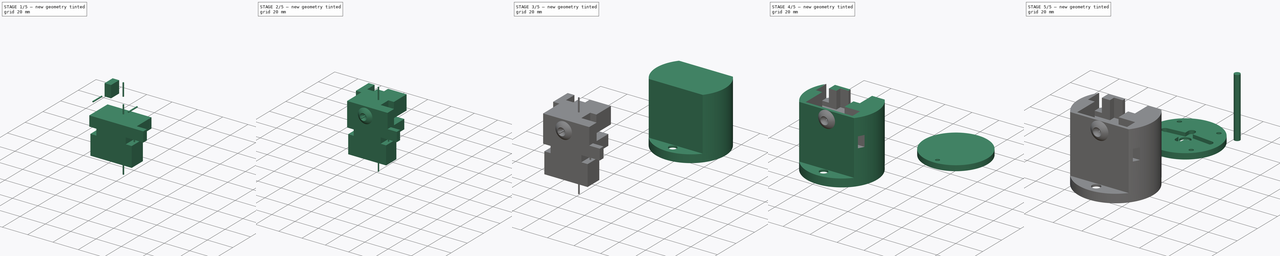
[diagram: build sequence overview — one tinted view per stage of 5, left to right]
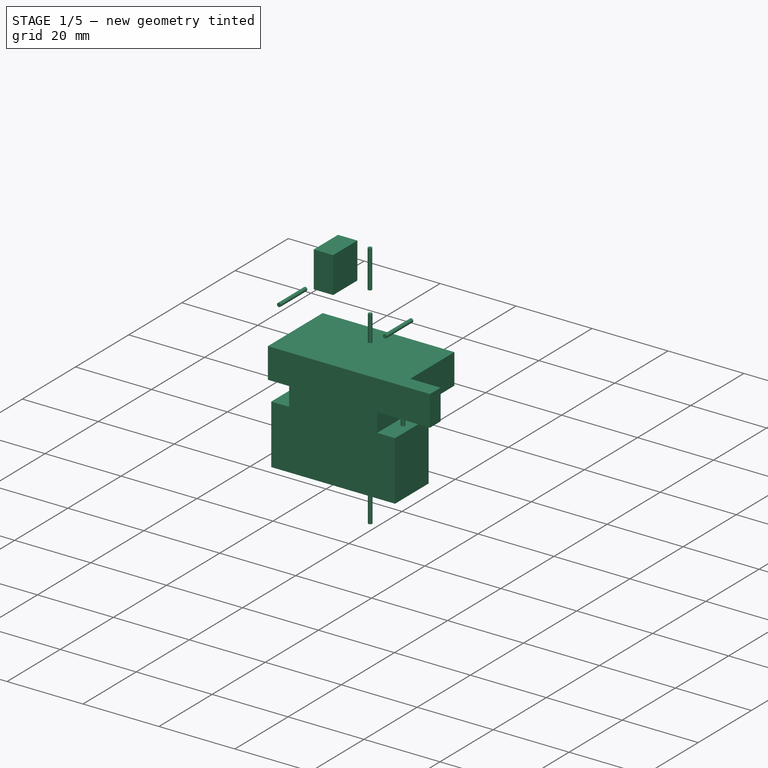
[diagram: stage 1 of 5 — iso view after this stage's code; geometry added in this stage tinted green]
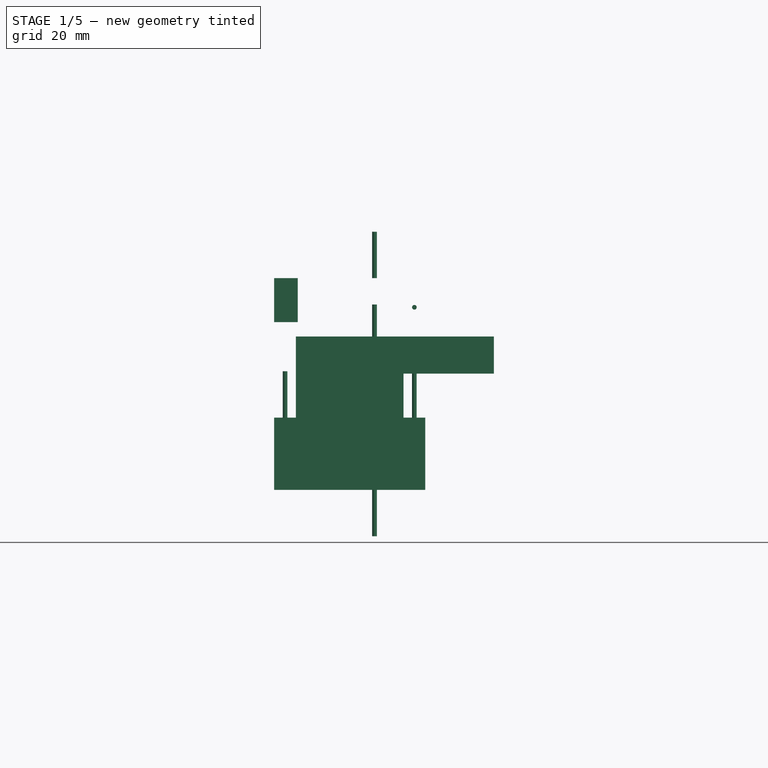
[diagram: stage 1 of 5 — front view after this stage's code; geometry added in this stage tinted green]
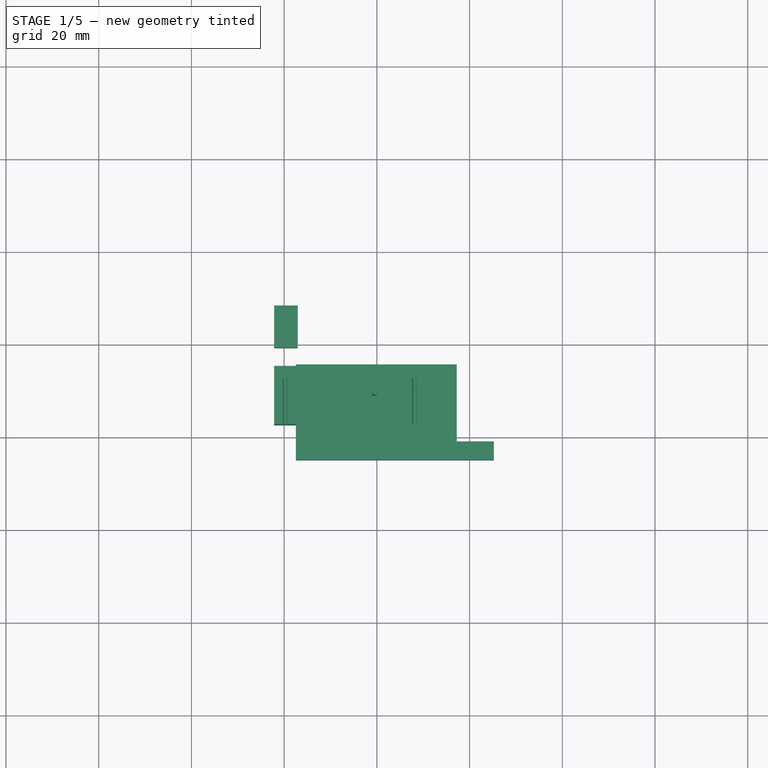
[diagram: stage 1 of 5 — top view after this stage's code; geometry added in this stage tinted green]
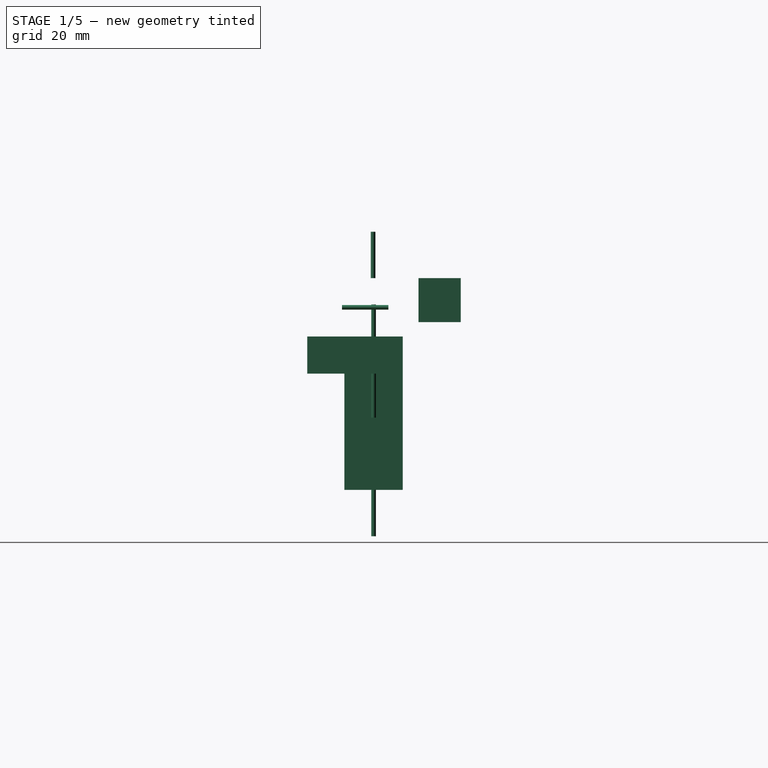
[diagram: stage 1 of 5 — right view after this stage's code; geometry added in this stage tinted green]
FCSTD DOCUMENT  (FreeCAD 0.18.3R)
Label: Horizonal.Turning.Frame.and.Disk
License: All rights reserved
LicenseURL: http://en.wikipedia.org/wiki/All_rights_reserved
objects: Part::Part2DObjectPython×44, Part::Extrusion×42, Part::Cut×16, Part::MultiFuse×12, Sketcher::SketchObject×4, App::DocumentObjectGroup×2, Part::Sphere×2, Part::FeaturePython×2, App::Part×1
note: 122 computed .brp shape members not serialized (recipe doc carries the construction recipe); baked Part::Feature solids carry a one-line shape summary decoded from their .brp

FEATURE [Part::Extrusion] Extrude005  label="Extrude - Vertical Axis"
  Base = -> Circle017
  Dir = (0,1,-2e-16)
  DirMode = 2
  FaceMakerClass = Part::FaceMakerBullseye
  LengthFwd = 50
  LengthRev = 0
  Placement = pos=(1.42e-14,-50,1.07e-14) rot=(0,0,1;0rad)
  Solid = false
  Symmetric = false
FEATURE [Part::Part2DObjectPython] Rectangle011  # Draft 2D object (typed FeaturePython)
  ChamferSize = 0
  Columns = 1
  FilletRadius = 0
  Height = 15.6
  Length = 32.6
  MakeFace = true
  Placement = pos=(-122.162,33.1,1.2e-15) rot=(1,0,0;3.14159rad)
  Rows = 1
FEATURE [Part::Part2DObjectPython] Rectangle012  # Draft 2D object (typed FeaturePython)
  ChamferSize = 0
  Columns = 1
  FilletRadius = 0
  Height = 9.5
  Length = 23.2
  MakeFace = true
  Placement = pos=(-117.462,17.5,3e-15) rot=(1,0,0;3.14159rad)
  Rows = 1
FEATURE [Part::Part2DObjectPython] Rectangle013  # Draft 2D object (typed FeaturePython)
  ChamferSize = 0
  Columns = 1
  FilletRadius = 0
  Height = 8
  Length = 34.7
  MakeFace = true
  Placement = pos=(-117.462,8,2.2e-15) rot=(1,0,0;3.14159rad)
  Rows = 1
FEATURE [Part::Extrusion] Extrude031
  Base = -> Rectangle011
  Dir = (-1e-16,1e-16,-1)
  DirMode = 2
  FaceMakerClass = Part::FaceMakerBullseye
  LengthFwd = 12.6
  LengthRev = 0
  Solid = false
  Symmetric = false
FEATURE [Part::Extrusion] Extrude032
  Base = -> Rectangle012
  Dir = (-1e-16,1e-16,-1)
  DirMode = 2
  FaceMakerClass = Part::FaceMakerBullseye
  LengthFwd = 12.6
  LengthRev = 0
  Solid = false
  Symmetric = false
FEATURE [Part::Extrusion] Extrude033
  Base = -> Rectangle013
  Dir = (-1e-16,1e-16,-1)
  DirMode = 2
  FaceMakerClass = Part::FaceMakerBullseye
  LengthFwd = 12.6
  LengthRev = 0
  Solid = false
  Symmetric = false
FEATURE [Part::MultiFuse] Fusion007
  Placement = pos=(-80.8474,-69.1144,2.4e-15) rot=(0,0,1;0rad)
  Shapes = -> [Extrude031,Extrude032,Extrude033]
FEATURE [Part::Part2DObjectPython] Rectangle015  # Draft 2D object (typed FeaturePython)
  ChamferSize = 0
  Columns = 1
  FilletRadius = 0
  Height = 9.5
  Length = 9.1
  MakeFace = true
  Placement = pos=(-122.162,-41.5303,-3.6e-15) rot=(0.57735,0.57735,-0.57735;4.18879rad)
  Rows = 1
FEATURE [Part::Extrusion] Extrude034
  Base = -> Rectangle015
  Dir = (-1,1e-16,-1e-16)
  DirMode = 2
  FaceMakerClass = Part::FaceMakerBullseye
  LengthFwd = -5.1
  LengthRev = 0
  Solid = false
  Symmetric = false
FEATURE [Part::Part2DObjectPython] Circle034  # Draft 2D object (typed FeaturePython)
  FirstAngle = 0
  LastAngle = 0
  MakeFace = true
  Placement = pos=(-91.9123,-48.0303,-6.3) rot=(0,0.707107,-0.707107;3.14159rad)
  Radius = 0.5
FEATURE [Part::Part2DObjectPython] Circle035  # Draft 2D object (typed FeaturePython)
  FirstAngle = 0
  LastAngle = 0
  MakeFace = true
  Placement = pos=(-119.812,-48.0303,-6.3) rot=(0,0.707107,-0.707107;3.14159rad)
  Radius = 0.5
FEATURE [Part::Extrusion] Extrude035
  Base = -> Circle035
  Dir = (-1e-16,-1,-2e-16)
  DirMode = 2
  FaceMakerClass = Part::FaceMakerBullseye
  LengthFwd = 10
  LengthRev = 0
  Solid = false
  Symmetric = false
FEATURE [Part::Extrusion] Extrude036
  Base = -> Circle034
  Dir = (-1e-16,-1,-2e-16)
  DirMode = 2
  FaceMakerClass = Part::FaceMakerBullseye
  LengthFwd = 10
  LengthRev = 0
  Solid = false
  Symmetric = false
FEATURE [Part::Part2DObjectPython] Circle036  # Draft 2D object (typed FeaturePython)
  FirstAngle = 0
  LastAngle = 0
  MakeFace = true
  Placement = pos=(-200.66,-51.6144,-6.3) rot=(0,0.707107,-0.707107;3.14159rad)
  Radius = 0.5
FEATURE [Part::Part2DObjectPython] Circle037  # Draft 2D object (typed FeaturePython)
  FirstAngle = 0
  LastAngle = 0
  MakeFace = true
  Placement = pos=(-172.76,-51.6144,-6.3) rot=(0,0.707107,-0.707107;3.14159rad)
  Radius = 0.5
FEATURE [Part::Extrusion] Extrude037
  Base = -> Circle036
  Dir = (3e-16,-1,-2e-16)
  DirMode = 2
  FaceMakerClass = Part::FaceMakerBullseye
  LengthFwd = 10
  LengthRev = 0
  Solid = false
  Symmetric = false
FEATURE [Part::Extrusion] Extrude038
  Base = -> Circle037
  Dir = (-1e-16,-1,-2e-16)
  DirMode = 2
  FaceMakerClass = Part::FaceMakerBullseye
  LengthFwd = 10
  LengthRev = 0
  Solid = false
  Symmetric = false
FEATURE [Part::MultiFuse] Fusion
  Shapes = -> [Fusion007,Extrude038,Extrude037]
FEATURE [Part::Part2DObjectPython] Circle038  # Draft 2D object (typed FeaturePython)
  FirstAngle = 0
  LastAngle = 0
  MakeFace = true
  Placement = pos=(-100.512,-51.3303,-5.5e-15) rot=(0,0,1;0rad)
  Radius = 0.5
FEATURE [Part::Part2DObjectPython] Rectangle  # Draft 2D object (typed FeaturePython)
  ChamferSize = 0
  Columns = 1
  FilletRadius = 0
  Height = 8
  Length = 8
  MakeFace = true
  Placement = pos=(-117.462,-65.5303,-20.6) rot=(0.57735,0.57735,0.57735;2.0944rad)
  Rows = 1
FEATURE [Part::Extrusion] Extrude039
  Base = -> Rectangle
  Dir = (1,-1e-16,-1e-16)
  DirMode = 2
  FaceMakerClass = Part::FaceMakerBullseye
  LengthFwd = 34.7
  LengthRev = 0
  Solid = false
  Symmetric = false
FEATURE [Part::Part2DObjectPython] Circle039  # Draft 2D object (typed FeaturePython)
  FirstAngle = 0
  LastAngle = 0
  MakeFace = true
  Placement = pos=(69.9424,0.00389671,11.2) rot=(1,0,0;3.14159rad)
  Radius = 2
FEATURE [Part::Extrusion] Extrude040  label="Extrude - Vertical azis connection on vertical Servo"
  Base = -> Circle038
  Dir = (1e-16,-1e-16,1)
  DirMode = 2
  FaceMakerClass = Part::FaceMakerBullseye
  LengthFwd = 10
  LengthRev = 0
  Solid = false
  Symmetric = false
FEATURE [Part::Part2DObjectPython] Rectangle017  # Draft 2D object (typed FeaturePython)
  ChamferSize = 0
  Columns = 1
  FilletRadius = 0
  Height = 8
  Length = 4
  MakeFace = true
  Placement = pos=(-10.885,-75.3786,32.1) rot=(0.57735,0.57735,0.57735;2.0944rad)
  Rows = 1
FEATURE [Part::Extrusion] Extrude053
  Base = -> Rectangle017
  Dir = (1,0,0)
  DirMode = 2
  FaceMakerClass = Part::FaceMakerBullseye
  LengthFwd = 8
  LengthRev = 0
  Placement = pos=(-71.8773,9.84826,-52.7) rot=(0,0,1;0rad)
  Solid = false
  Symmetric = false
FEATURE [Part::MultiFuse] Fusion018
  Placement = pos=(80.8474,-44.9303,-81.7144) rot=(-1,0,0;1.5708rad)
  Shapes = -> [Fusion,Extrude005]
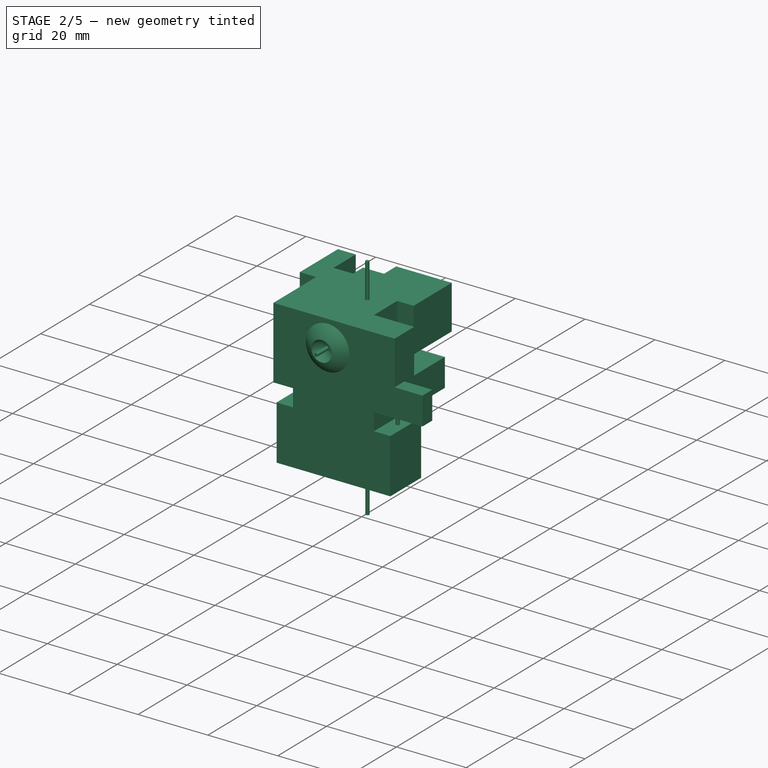
[diagram: stage 2 of 5 — iso view after this stage's code; geometry added in this stage tinted green]
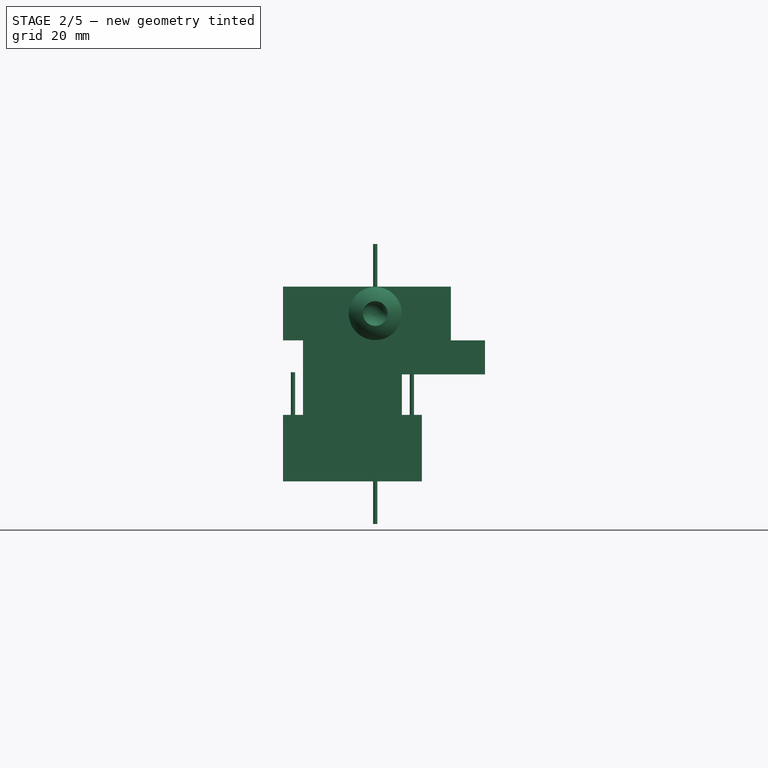
[diagram: stage 2 of 5 — front view after this stage's code; geometry added in this stage tinted green]
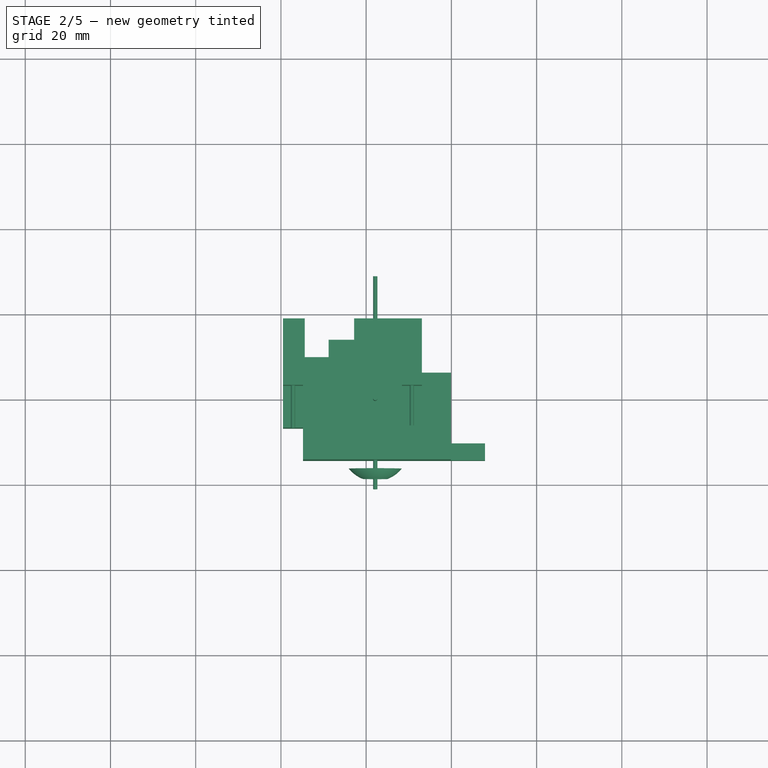
[diagram: stage 2 of 5 — top view after this stage's code; geometry added in this stage tinted green]
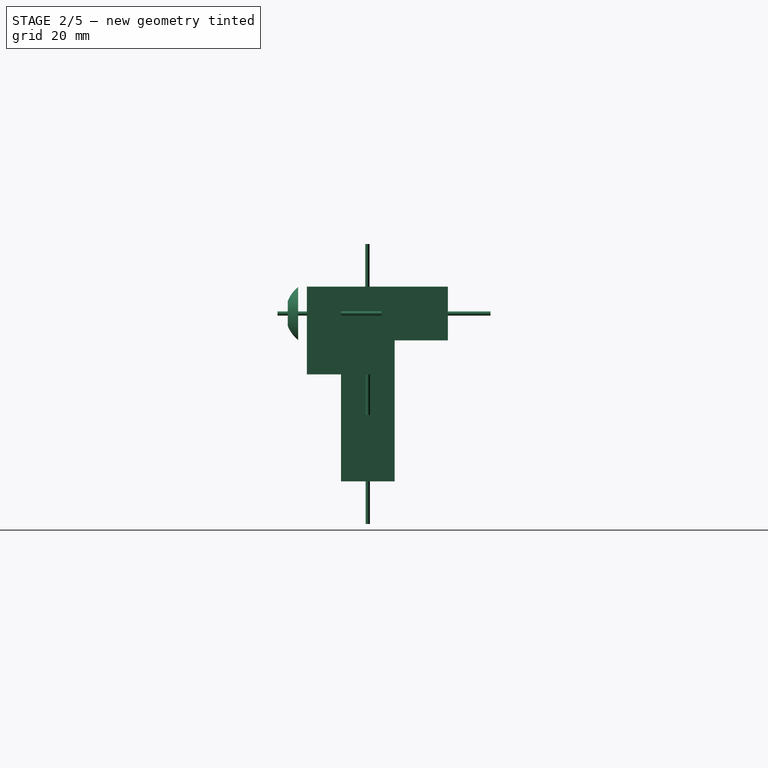
[diagram: stage 2 of 5 — right view after this stage's code; geometry added in this stage tinted green]
FEATURE [Part::Part2DObjectPython] Rectangle005  # Draft 2D object (typed FeaturePython)
  ChamferSize = 0
  Columns = 1
  FilletRadius = 0
  Height = 8
  Length = 34.7
  MakeFace = true
  Placement = pos=(-117.462,8,6e-16) rot=(1,0,0;3.14159rad)
  Rows = 1
FEATURE [Part::Part2DObjectPython] Rectangle007  # Draft 2D object (typed FeaturePython)
  ChamferSize = 0
  Columns = 1
  FilletRadius = 0
  Height = 9.5
  Length = 23.2
  MakeFace = true
  Placement = pos=(-117.462,17.5,2.2e-15) rot=(1,0,0;3.14159rad)
  Rows = 1
FEATURE [Part::Part2DObjectPython] Rectangle008  # Draft 2D object (typed FeaturePython)
  ChamferSize = 0
  Columns = 1
  FilletRadius = 0
  Height = 6.5
  Length = 32.6
  MakeFace = true
  Placement = pos=(-122.162,24,5e-16) rot=(1,0,0;3.14159rad)
  Rows = 1
FEATURE [Part::Part2DObjectPython] Rectangle009  # Draft 2D object (typed FeaturePython)
  ChamferSize = 0
  Columns = 1
  FilletRadius = 0
  Height = 4.1
  Length = 21.9
  MakeFace = true
  Placement = pos=(-111.462,28.1,0) rot=(1,0,0;3.14159rad)
  Rows = 1
FEATURE [Part::Part2DObjectPython] Rectangle010  # Draft 2D object (typed FeaturePython)
  ChamferSize = 0
  Columns = 1
  FilletRadius = 0
  Height = 5
  Length = 15.9
  MakeFace = true
  Placement = pos=(-105.462,33.1,0) rot=(1,0,0;3.14159rad)
  Rows = 1
FEATURE [Part::Extrusion] Extrude025
  Base = -> Rectangle005
  Dir = (-1e-16,1e-16,-1)
  DirMode = 2
  FaceMakerClass = Part::FaceMakerBullseye
  LengthFwd = 12.6
  LengthRev = 0
  Placement = pos=(0,-65.5303,-5.1e-15) rot=(0,0,1;0rad)
  Solid = false
  Symmetric = false
FEATURE [Part::Extrusion] Extrude027
  Base = -> Rectangle007
  Dir = (-1e-16,1e-16,-1)
  DirMode = 2
  FaceMakerClass = Part::FaceMakerBullseye
  LengthFwd = 12.6
  LengthRev = 0
  Placement = pos=(0,-65.5303,-5.1e-15) rot=(0,0,1;0rad)
  Solid = false
  Symmetric = false
FEATURE [Part::Extrusion] Extrude028
  Base = -> Rectangle008
  Dir = (-1e-16,1e-16,-1)
  DirMode = 2
  FaceMakerClass = Part::FaceMakerBullseye
  LengthFwd = 12.6
  LengthRev = 0
  Placement = pos=(0,-65.5303,-5.1e-15) rot=(0,0,1;0rad)
  Solid = false
  Symmetric = false
FEATURE [Part::Extrusion] Extrude029
  Base = -> Rectangle009
  Dir = (-1e-16,1e-16,-1)
  DirMode = 2
  FaceMakerClass = Part::FaceMakerBullseye
  LengthFwd = 12.6
  LengthRev = 0
  Placement = pos=(0,-65.5303,-5.1e-15) rot=(0,0,1;0rad)
  Solid = false
  Symmetric = false
FEATURE [Part::Extrusion] Extrude030
  Base = -> Rectangle010
  Dir = (-1e-16,1e-16,-1)
  DirMode = 2
  FaceMakerClass = Part::FaceMakerBullseye
  LengthFwd = 12.6
  LengthRev = 0
  Placement = pos=(0,-65.5303,-5.1e-15) rot=(0,0,1;0rad)
  Solid = false
  Symmetric = false
FEATURE [Part::MultiFuse] Fusion008
  Shapes = -> [Extrude030,Extrude029,Extrude028,Extrude027,Extrude025,Extrude034,Extrude035,Extrude036]
FEATURE [Part::Part2DObjectPython] Circle  # Draft 2D object (typed FeaturePython)
  FirstAngle = 0
  LastAngle = 0
  MakeFace = true
  Placement = pos=(-100.512,-22.4303,-6.3) rot=(-1,0,0;1.5708rad)
  Radius = 0.5
FEATURE [Part::Extrusion] Extrude  label="Extrude -Horizontal Axis"
  Base = -> Circle
  Dir = (0,1,-2e-16)
  DirMode = 2
  FaceMakerClass = Part::FaceMakerBullseye
  LengthFwd = -50
  LengthRev = 0
  Solid = false
  Symmetric = false
FEATURE [Part::MultiFuse] Fusion010
  Shapes = -> [Fusion008,Extrude039]
FEATURE [Part::Part2DObjectPython] Rectangle018  # Draft 2D object (typed FeaturePython)
  ChamferSize = 0
  Columns = 1
  FilletRadius = 0
  Height = 38.5299
  Length = 41.3827
  MakeFace = true
  Placement = pos=(18.1225,-129.871,2.27166) rot=(-1,0,0;1.5708rad)
  Rows = 1
FEATURE [Part::Sphere] Sphere
  Angle1 = -90
  Angle2 = 90
  Angle3 = 360
  AttacherType = Attacher::AttachEngine3D
  Placement = pos=(38.8138,-124.85,-16.9933) rot=(0,0,1;0rad)
  Radius = 8
FEATURE [Part::FeaturePython] Slice  # WARN: FeaturePython — macro-defined, semantics opaque (R4)
  Base = -> Sphere
  Mode = 1
  Tolerance = 0
  Tools = -> [Rectangle018]
FEATURE [Part::FeaturePython] Slice_child1  label="Slice.1"  # WARN: FeaturePython — macro-defined, semantics opaque (R4)
  Base = -> Slice
  FilterType = 1
  Invert = false
  OverrideMaxVal = 0
  Placement = pos=(46.2737,49.6784,69.6933) rot=(0,0,1;0rad)
  WindowFrom = 80
  WindowTo = 100
  items = 1
FEATURE [Part::Sphere] Sphere001
  Angle1 = -90
  Angle2 = 90
  Angle3 = 360
  AttacherType = Attacher::AttachEngine3D
  Placement = pos=(85.0876,-83.3925,52.7) rot=(0,0,1;0rad)
  Radius = 3
FEATURE [Part::Cut] Cut016
  Base = -> Slice_child1
  Placement = pos=(-42.9517,-16.7774,-6.30576) rot=(0,0,1;0rad)
  Tool = -> Sphere001
FEATURE [Part::Part2DObjectPython] Line001  # Draft 2D object (typed FeaturePython)
  ChamferSize = 0
  Closed = false
  End = (-163.61,-77.1144,0)
  FilletRadius = 0
  Length = 8
  MakeFace = true
  Placement = pos=(-163.61,-69.1144,6e-16) rot=(0.57735,-0.57735,0.57735;4.18879rad)
  Points = (2) [(0,0,0),(8,1.82711e-16,0)]
  Start = (-163.61,-69.1144,6e-16)
  Subdivisions = 0
  Support = -> [Fusion]
FEATURE [Part::MultiFuse] Fusion019
  Shapes = -> [Extrude040,Extrude,Fusion010,Extrude053]
FEATURE [Part::MultiFuse] Fusion020
  Placement = pos=(142.651,-29.3896,52.7) rot=(0,0,1;0rad)
  Shapes = -> [Fusion019,Fusion018]
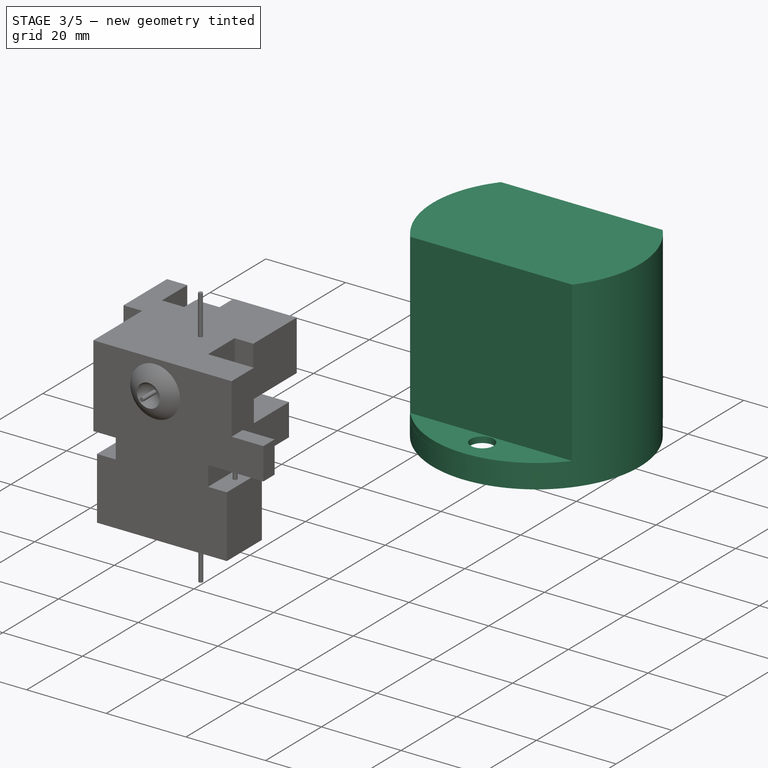
[diagram: stage 3 of 5 — iso view after this stage's code; geometry added in this stage tinted green]
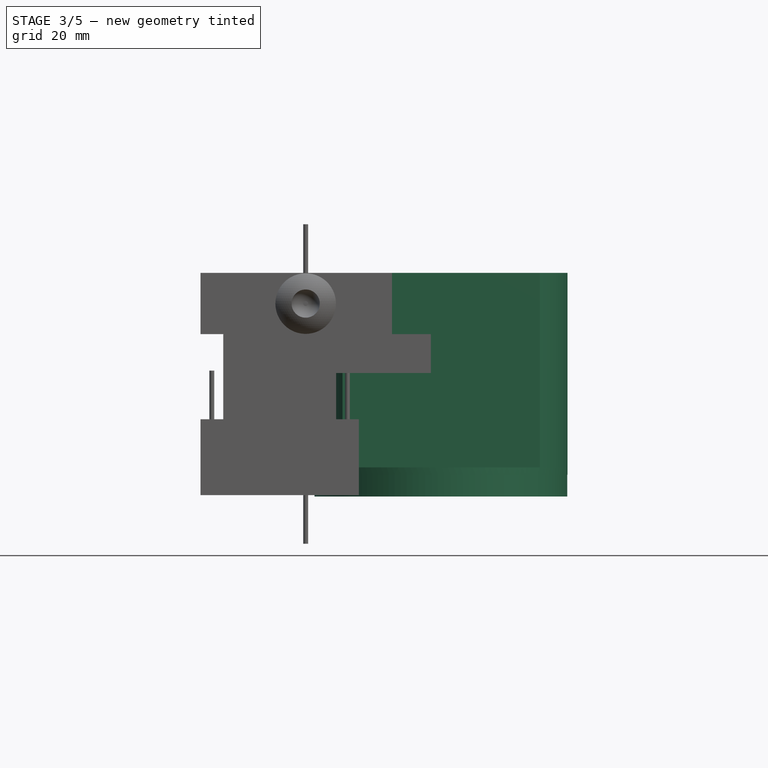
[diagram: stage 3 of 5 — front view after this stage's code; geometry added in this stage tinted green]
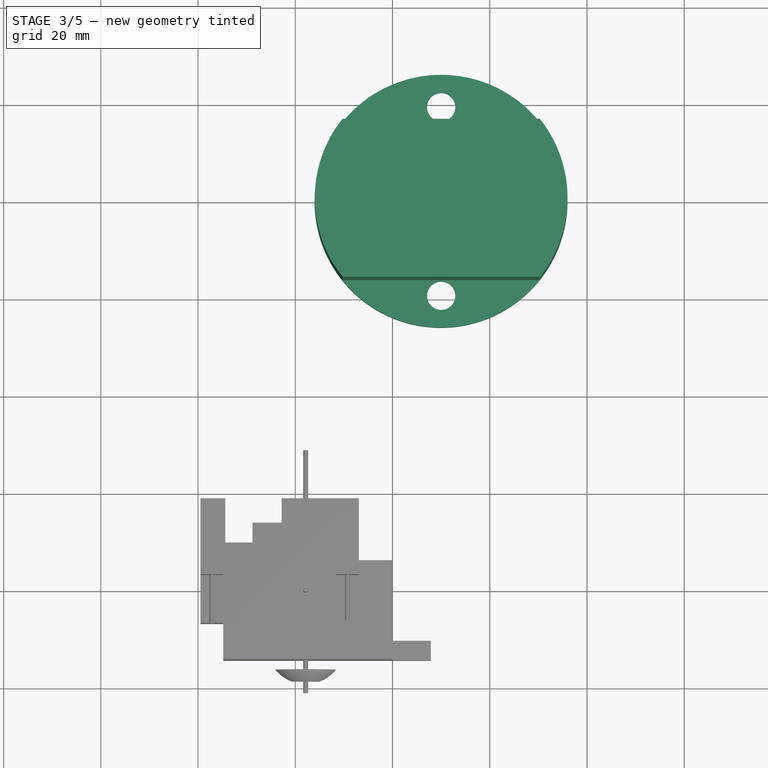
[diagram: stage 3 of 5 — top view after this stage's code; geometry added in this stage tinted green]
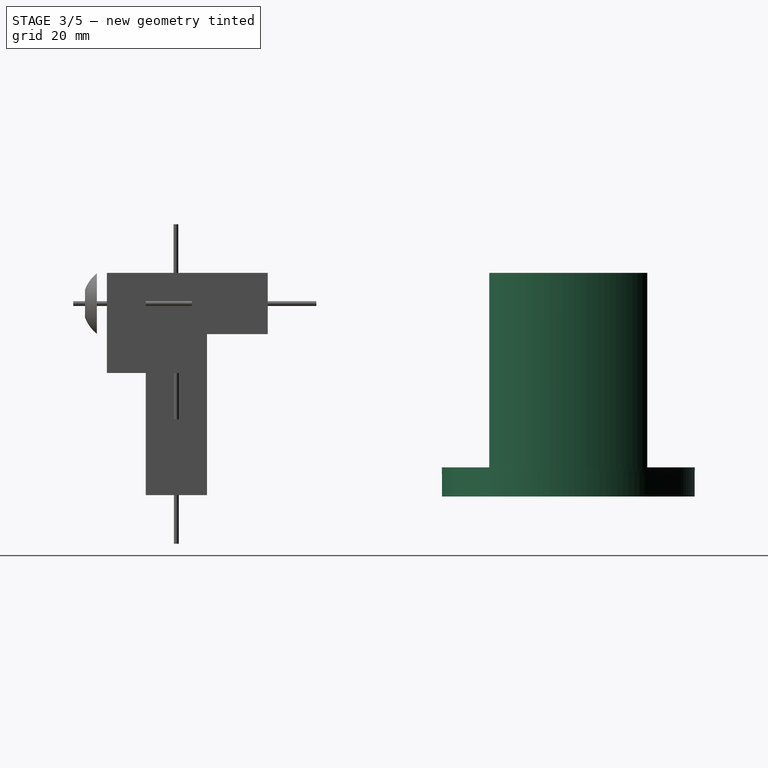
[diagram: stage 3 of 5 — right view after this stage's code; geometry added in this stage tinted green]
FEATURE [App::Part] Part  label="Part - Vertical Servo XY"
  Origin = -> Origin
FEATURE [Sketcher::SketchObject] Sketch001  label="Vertical Servo - Sketch - XY"
  MapMode = 5
  sketch-geometry (17):
    g0: LineSegment StartX=-122.162 StartY=33.1 StartZ=0 EndX=-122.162 EndY=17.5 EndZ=0
    g1: LineSegment StartX=-122.162 StartY=17.5 StartZ=0 EndX=-117.462 EndY=17.5 EndZ=0
    g2: LineSegment StartX=-117.462 StartY=17.5 StartZ=0 EndX=-117.462 EndY=0 EndZ=0
    g3: LineSegment StartX=-117.462 StartY=0 StartZ=0 EndX=-82.7623 EndY=0 EndZ=0
    g4: LineSegment StartX=-82.7623 StartY=0 StartZ=0 EndX=-82.7623 EndY=8 EndZ=0
    g5: LineSegment StartX=-82.7623 StartY=8 StartZ=0 EndX=-94.2623 EndY=8 EndZ=0
    g6: LineSegment StartX=-94.2623 StartY=8 StartZ=0 EndX=-94.2623 EndY=17.5 EndZ=0
    g7: LineSegment StartX=-94.2623 StartY=17.5 StartZ=0 EndX=-89.5623 EndY=17.5 EndZ=0
    g8: LineSegment StartX=-89.5623 StartY=17.5 StartZ=0 EndX=-89.5623 EndY=33.1 EndZ=0
    g9: LineSegment StartX=-89.5623 StartY=33.1 StartZ=0 EndX=-105.462 EndY=33.1 EndZ=0
    g10: LineSegment StartX=-105.462 StartY=33.1 StartZ=0 EndX=-105.462 EndY=28.1 EndZ=0
    g11: LineSegment StartX=-105.462 StartY=28.1 StartZ=0 EndX=-111.462 EndY=28.1 EndZ=0
    g12: LineSegment StartX=-111.462 StartY=28.1 StartZ=0 EndX=-111.462 EndY=24 EndZ=0
    g13: LineSegment StartX=-111.462 StartY=24 StartZ=0 EndX=-117.462 EndY=24 EndZ=0
    g14: LineSegment StartX=-117.462 StartY=24 StartZ=0 EndX=-117.462 EndY=33.1 EndZ=0
    g15: LineSegment StartX=-117.462 StartY=33.1 StartZ=0 EndX=-122.162 EndY=33.1 EndZ=0
    g16: LineSegment [constr] StartX=-105.862 StartY=39.7298 StartZ=0 EndX=-105.862 EndY=-32.8454 EndZ=0
  constraints (47):
    c: Vertical(g0)
    c: Coincident(g0,g1)
    c: Horizontal(g1)
    c: Coincident(g1,g2)
    c: Vertical(g2)
    c: Coincident(g2,g3)
    c: Horizontal(g3)
    c: Coincident(g3,g4)
    c: Vertical(g4)
    c: Coincident(g4,g5)
    c: Horizontal(g5)
    c: Coincident(g5,g6)
    c: Vertical(g6)
    c: Coincident(g6,g7)
    c: Horizontal(g7)
    c: Coincident(g7,g8)
    c: Vertical(g8)
    c: Coincident(g8,g9)
    c: Horizontal(g9)
    c: Vertical(g10)
    c: Coincident(g10,g11)
    c: Horizontal(g11)
    c: Coincident(g11,g12)
    c: Vertical(g12)
    c: Coincident(g12,g13)
    c: Horizontal(g13)
    c: Coincident(g13,g14)
    c: Vertical(g14)
    c: Coincident(g14,g15)
    c: Horizontal(g15)
    c: Coincident(g15,g0)
    c: DistanceX(g13,g13) = 6
    c: DistanceY(g2,g1) = 17.5
    c: DistanceY(g4,g4) = 8
    c: DistanceY(g10,g10) = 5
    c: Coincident(g9,g10)
    c: DistanceX(g1,g5) = 23.2
    c: DistanceX(g0,g7) = 32.6
    c: DistanceY(g2,g13) = 24
    c: Symmetric(g1,g6,g16)
    c: Symmetric(g0,g7,g16)
    c: DistanceY(g-1,g2) = 0
    c: DistanceX(g14,g9) = 12
    c: DistanceX(g0,g14) = 4.7
    c: DistanceY(g2,g10) = 28.1
    c: DistanceY(g13,g14) = 9.1
    c: DistanceX(g5,g5) = 11.5
FEATURE [App::DocumentObjectGroup] Group  label="Servo template"
  Group = -> [Part,Sketch001]
FEATURE [Part::Part2DObjectPython] Circle017  # Draft 2D object (typed FeaturePython)
  FirstAngle = 0
  LastAngle = 0
  MakeFace = true
  Placement = pos=(-181.36,-26.0144,-6.3) rot=(0,0.707107,0.707107;3.14159rad)
  Radius = 0.5
FEATURE [Sketcher::SketchObject] Sketch
  MapMode = 5
  Placement = pos=(70,1.8e-15,12.7) rot=(0,0,1;0rad)
  sketch-geometry (1):
    g0: Circle CenterX=0 CenterY=0 CenterZ=0 NormalX=0 NormalY=0 NormalZ=1 AngleXU=0 Radius=24
  constraints (2):
    c: Coincident(g0,g-1)
    c: Diameter(g0) = 48
FEATURE [Sketcher::SketchObject] Sketch002
  MapMode = 5
  Placement = pos=(0,0,12.7) rot=(1,0,0;3.14159rad)
FEATURE [Sketcher::SketchObject] Sketch003
  MapMode = 5
  Placement = pos=(0,0,12.7) rot=(1,0,0;3.14159rad)
  sketch-geometry (8):
    g0: LineSegment StartX=31.7289 StartY=34.4201 StartZ=0 EndX=112.659 EndY=34.4201 EndZ=0
    g1: LineSegment StartX=112.659 StartY=34.4201 StartZ=0 EndX=112.659 EndY=16.25 EndZ=0
    g2: LineSegment StartX=112.659 StartY=16.25 StartZ=0 EndX=31.7289 EndY=16.25 EndZ=0
    g3: LineSegment StartX=31.7289 StartY=16.25 StartZ=0 EndX=31.7289 EndY=34.4201 EndZ=0
    g4: LineSegment StartX=31.7289 StartY=-16.25 StartZ=0 EndX=112.659 EndY=-16.25 EndZ=0
    g5: LineSegment StartX=112.659 StartY=-16.25 StartZ=0 EndX=112.659 EndY=-33.7347 EndZ=0
    g6: LineSegment StartX=112.659 StartY=-33.7347 StartZ=0 EndX=31.7289 EndY=-33.7347 EndZ=0
    g7: LineSegment StartX=31.7289 StartY=-33.7347 StartZ=0 EndX=31.7289 EndY=-16.25 EndZ=0
  constraints (18):
    c: Coincident(g0,g1)
    c: Coincident(g1,g2)
    c: Coincident(g2,g3)
    c: Coincident(g3,g0)
    c: Horizontal(g0)
    c: Horizontal(g2)
    c: Vertical(g1)
    c: Vertical(g3)
    c: Coincident(g4,g5)
    c: Coincident(g5,g6)
    c: Coincident(g6,g7)
    c: Coincident(g7,g4)
    c: Horizontal(g6)
    c: Vertical(g5)
    c: Vertical(g7)
    c: DistanceY(g4,g1) = 32.5
    c: Symmetric(g2,g4,g-1)
    c: Symmetric(g1,g4,g-1)
FEATURE [App::DocumentObjectGroup] Group001  label="Base group"
  Group = -> [Sketch,Sketch002,Sketch003]
FEATURE [Part::Part2DObjectPython] Circle025  # Draft 2D object (typed FeaturePython)
  FirstAngle = 0
  LastAngle = 0
  MakeFace = true
  Placement = pos=(70,1.8e-15,12.7) rot=(0,0,1;0rad)
  Radius = 26
FEATURE [Part::Part2DObjectPython] Rectangle002  # Draft 2D object (typed FeaturePython)
  ChamferSize = 0
  Columns = 1
  FilletRadius = 0
  Height = 18.1701
  Length = 80.9302
  MakeFace = true
  Placement = pos=(31.7289,-34.4201,12.7) rot=(0,0,1;0rad)
  Rows = 1
FEATURE [Part::Part2DObjectPython] Rectangle003  # Draft 2D object (typed FeaturePython)
  ChamferSize = 0
  Columns = 1
  FilletRadius = 0
  Height = 17.4847
  Length = 80.9302
  MakeFace = true
  Placement = pos=(31.7289,16.25,12.7) rot=(0,0,1;0rad)
  Rows = 1
FEATURE [Part::Extrusion] Extrude016  label="Extrude - Block 2 to cut cylinder"
  Base = -> Rectangle002
  Dir = (0,0,1)
  DirMode = 2
  FaceMakerClass = Part::FaceMakerBullseye
  LengthFwd = 40
  LengthRev = 0
  Solid = false
  Symmetric = false
FEATURE [Part::Extrusion] Extrude017  label="Extrude-Block 1 to cut cylinder"
  Base = -> Rectangle003
  Dir = (0,0,1)
  DirMode = 2
  FaceMakerClass = Part::FaceMakerBullseye
  LengthFwd = 40
  LengthRev = 0
  Solid = false
  Symmetric = false
FEATURE [Part::Part2DObjectPython] Circle028  # Draft 2D object (typed FeaturePython)
  FirstAngle = 0
  LastAngle = 0
  MakeFace = true
  Placement = pos=(72.194,19.3266,12.7) rot=(0,0,1;0rad)
  Radius = 2.9
FEATURE [Part::Part2DObjectPython] Circle029  # Draft 2D object (typed FeaturePython)
  FirstAngle = 0
  LastAngle = 0
  MakeFace = true
  Placement = pos=(72.194,-19.4681,12.7) rot=(0,0,1;0rad)
  Radius = 2.9
FEATURE [Part::Extrusion] Extrude019
  Base = -> Circle028
  Dir = (0,0,1)
  DirMode = 2
  FaceMakerClass = Part::FaceMakerBullseye
  LengthFwd = -1.5
  LengthRev = 0
  Placement = pos=(-2.19398,0,-1.1e-14) rot=(0,0,1;0rad)
  Solid = false
  Symmetric = false
FEATURE [Part::Extrusion] Extrude020
  Base = -> Circle029
  Dir = (0,0,1)
  DirMode = 2
  FaceMakerClass = Part::FaceMakerBullseye
  LengthFwd = -1.5
  LengthRev = 0
  Placement = pos=(-2.19398,-7e-15,-4e-15) rot=(0,0,1;0rad)
  Solid = false
  Symmetric = false
FEATURE [Part::Extrusion] Extrude021
  Base = -> Circle025
  Dir = (0,0,1)
  DirMode = 2
  FaceMakerClass = Part::FaceMakerBullseye
  LengthFwd = 40
  LengthRev = 0
  Solid = false
  Symmetric = false
FEATURE [Part::Part2DObjectPython] Circle030  # Draft 2D object (typed FeaturePython)
  FirstAngle = 0
  LastAngle = 0
  MakeFace = true
  Placement = pos=(70,2e-15,12.7) rot=(0,0,1;0rad)
  Radius = 26
FEATURE [Part::Extrusion] Extrude022
  Base = -> Circle030
  Dir = (0,0,1)
  DirMode = 2
  FaceMakerClass = Part::FaceMakerBullseye
  LengthFwd = -1.5
  LengthRev = 0
  Solid = false
  Symmetric = false
FEATURE [Part::Part2DObjectPython] Circle031  # Draft 2D object (typed FeaturePython)
  FirstAngle = 0
  LastAngle = 0
  MakeFace = true
  Placement = pos=(112.659,-56.7638,12.7) rot=(0,0,1;0rad)
  Radius = 26
FEATURE [Part::Part2DObjectPython] Circle032  # Draft 2D object (typed FeaturePython)
  FirstAngle = 0
  LastAngle = 0
  MakeFace = true
  Placement = pos=(112.659,-56.7638,12.7) rot=(0,0,1;0rad)
  Radius = 24.5
FEATURE [Part::Cut] Cut003
  Base = -> Extrude021
  Tool = -> Extrude016
FEATURE [Part::Cut] Cut004
  Base = -> Cut003
  Tool = -> Extrude017
FEATURE [Part::Extrusion] Extrude023
  Base = -> Circle032
  Dir = (0,0,1)
  DirMode = 2
  FaceMakerClass = Part::FaceMakerBullseye
  LengthFwd = 4.5
  LengthRev = 0
  Solid = false
  Symmetric = false
FEATURE [Part::Extrusion] Extrude024
  Base = -> Circle031
  Dir = (0,0,1)
  DirMode = 2
  FaceMakerClass = Part::FaceMakerBullseye
  LengthFwd = 4.5
  LengthRev = 0
  Solid = false
  Symmetric = false
FEATURE [Part::Cut] Cut006  label="Cut - Rim"
  Base = -> Extrude024
  Placement = pos=(-42.715,56.7656,-6) rot=(0,0,1;0rad)
  Tool = -> Extrude023
FEATURE [Part::Cut] Cut
  Base = -> Extrude022
  Tool = -> Extrude019
FEATURE [Part::Cut] Cut007
  Base = -> Cut
  Tool = -> Extrude020
FEATURE [Part::MultiFuse] Fusion005  label="Fusion - Cat Base rim"
  Shapes = -> [Cut007,Cut004]
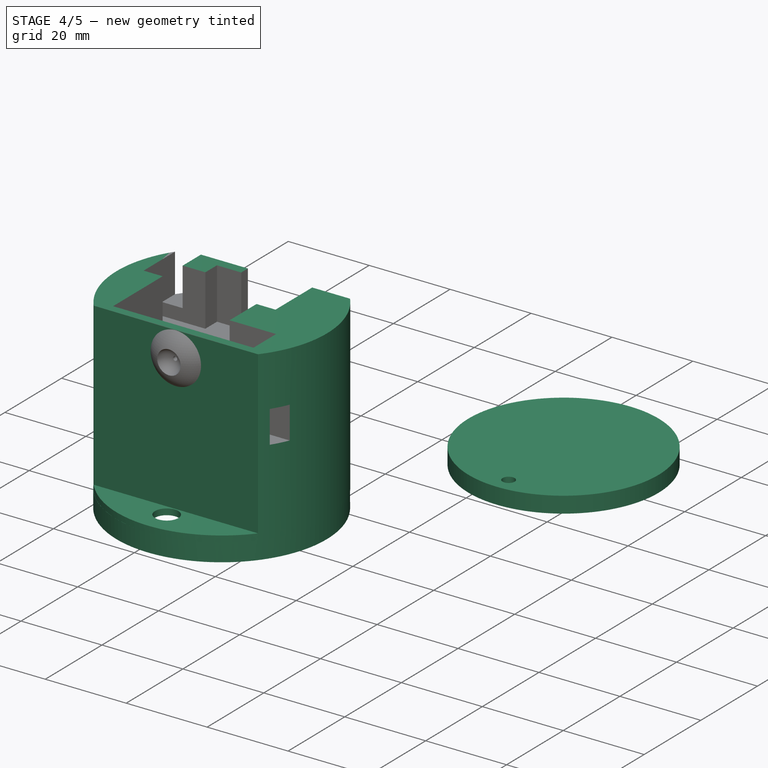
[diagram: stage 4 of 5 — iso view after this stage's code; geometry added in this stage tinted green]
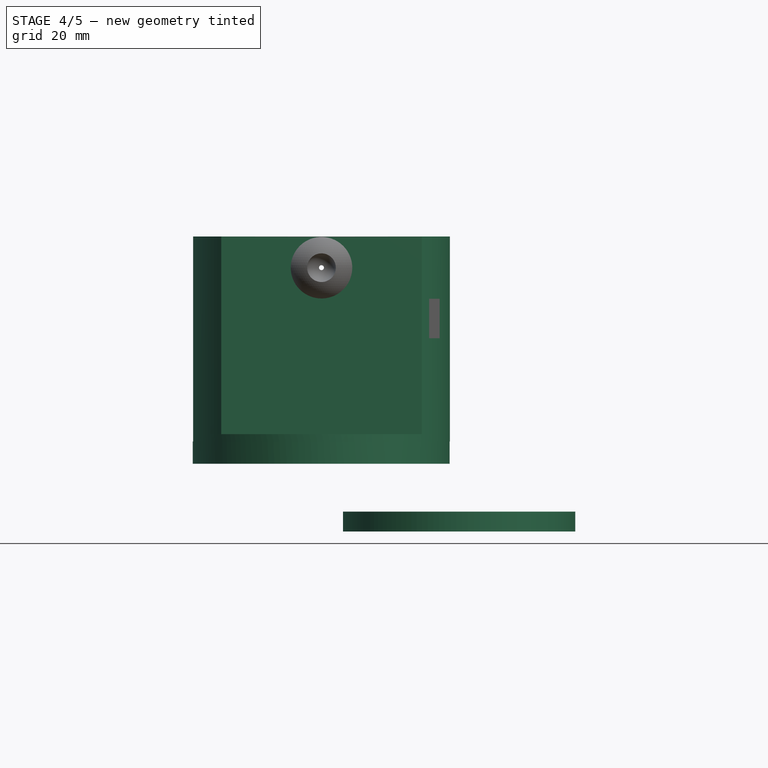
[diagram: stage 4 of 5 — front view after this stage's code; geometry added in this stage tinted green]
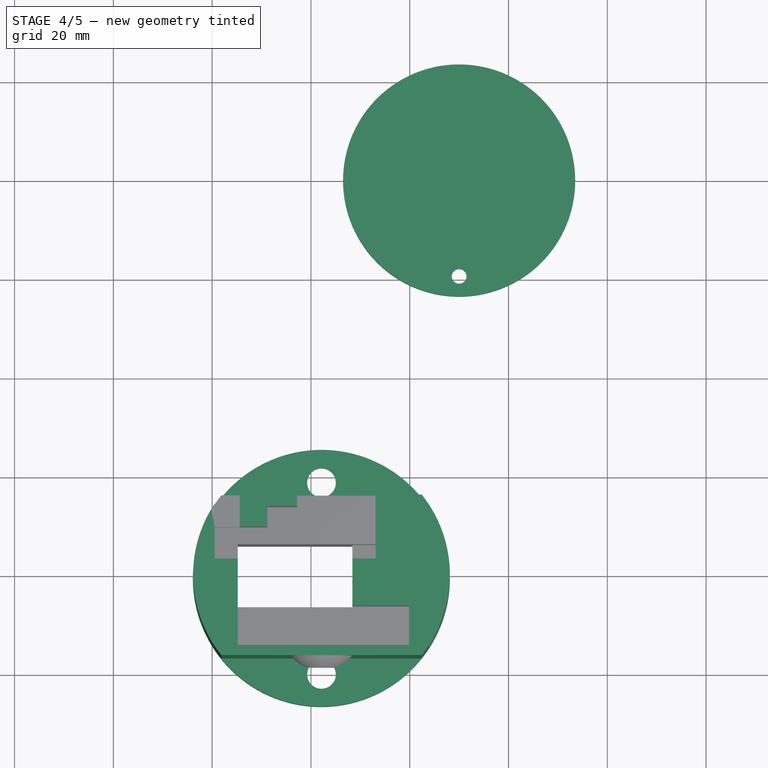
[diagram: stage 4 of 5 — top view after this stage's code; geometry added in this stage tinted green]
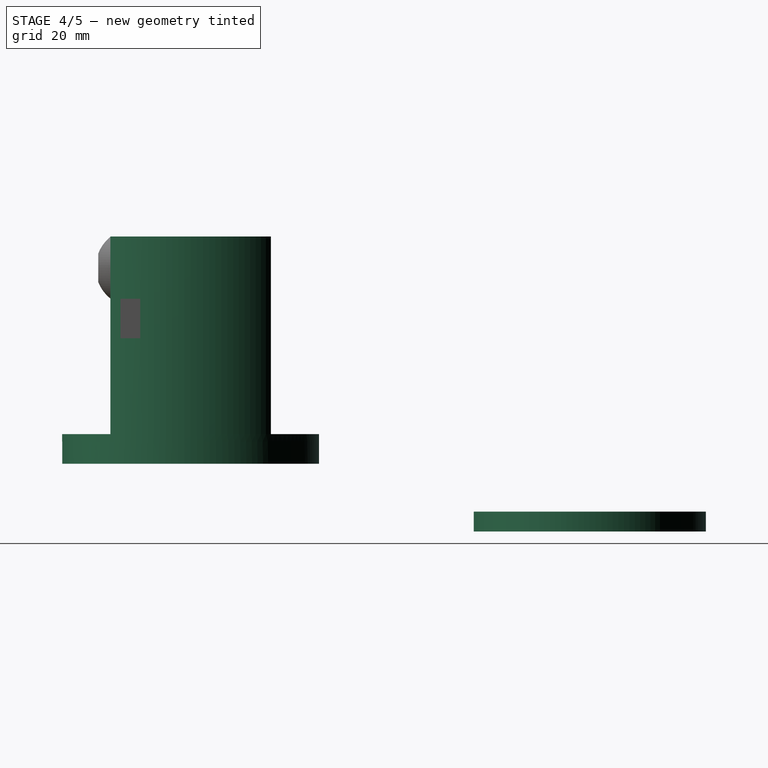
[diagram: stage 4 of 5 — right view after this stage's code; geometry added in this stage tinted green]
FEATURE [Part::MultiFuse] Fusion006  label="Fusion - Base with rim and rim cover"
  Placement = pos=(-27.8616,-80.7199,0) rot=(0,0,1;0rad)
  Shapes = -> [Fusion005,Cut006]
FEATURE [Part::Part2DObjectPython] Circle040  # Draft 2D object (typed FeaturePython)
  FirstAngle = 0
  LastAngle = 0
  MakeFace = true
  Placement = pos=(70,0.1,-3) rot=(1,0,0;3.14159rad)
  Radius = 23.5
  Support = -> [Fusion006]
FEATURE [Part::Extrusion] Extrude044
  Base = -> Circle040
  Dir = (0,0,-1)
  DirMode = 2
  FaceMakerClass = Part::FaceMakerBullseye
  LengthFwd = 4
  LengthRev = 0
  Solid = false
  Symmetric = false
FEATURE [Part::Extrusion] Extrude048
  Base = -> Circle044
  Dir = (0,0,1)
  DirMode = 2
  FaceMakerClass = Part::FaceMakerBullseye
  LengthFwd = -4
  LengthRev = 0
  Solid = false
  Symmetric = false
FEATURE [Part::Cut] Cut008
  Base = -> Extrude044
  Tool = -> Extrude048
FEATURE [Part::Part2DObjectPython] Circle047  # Draft 2D object (typed FeaturePython)
  FirstAngle = 0
  LastAngle = 0
  MakeFace = true
  Placement = pos=(70,19.4988,-3) rot=(0,0,1;0rad)
  Radius = 2.6
  Support = -> [Cut011]
FEATURE [Part::Part2DObjectPython] Circle048  # Draft 2D object (typed FeaturePython)
  FirstAngle = 0
  LastAngle = 0
  MakeFace = true
  Placement = pos=(89.3974,0.101403,-3) rot=(0,0,1;0rad)
  Radius = 2.6
FEATURE [Part::Part2DObjectPython] Circle049  # Draft 2D object (typed FeaturePython)
  FirstAngle = 0
  LastAngle = 0
  MakeFace = true
  Placement = pos=(70,-19.296,-3) rot=(0,0,1;0rad)
  Radius = 2.6
FEATURE [Part::Part2DObjectPython] Circle050  # Draft 2D object (typed FeaturePython)
  FirstAngle = 0
  LastAngle = 0
  MakeFace = true
  Placement = pos=(50.6026,0.101403,-3) rot=(0,0,1;0rad)
  Radius = 2.6
FEATURE [Part::Extrusion] Extrude049
  Base = -> Circle050
  Dir = (0,0,1)
  DirMode = 2
  FaceMakerClass = Part::FaceMakerBullseye
  LengthFwd = -1.5
  LengthRev = 0
  Solid = false
  Symmetric = false
FEATURE [Part::Part2DObjectPython] Wire001  # Draft 2D object (typed FeaturePython)
  ChamferSize = 0
  Closed = true
  End = (418.589,52.5359,32.5)
  FilletRadius = 0
  Length = 92.9649
  MakeFace = true
  Placement = pos=(418.589,55.5117,32.5) rot=(0,0,1;0rad)
  Points = (55) [(0,0,0),(-11.7547,1.0599,0),(-12.3223,1.1345,0),(-12.9022,1.3747,0),(-13.4001,1.7568,0),(-14.0224,2.8347,0),(-14.1044,3.4569,0),(-14.0224,4.0792,0),+47 more]
  Start = (418.589,55.5117,32.5)
  Subdivisions = 0
FEATURE [Part::Extrusion] Extrude055
  Base = -> Wire001
  Dir = (0,0,1)
  DirMode = 2
  FaceMakerClass = Part::FaceMakerBullseye
  LengthFwd = 2.5
  LengthRev = 0
  Placement = pos=(-305.905,-60.4811,-2.5) rot=(0,0,1;0rad)
  Solid = false
  Symmetric = false
FEATURE [Part::Part2DObjectPython] Circle051  # Draft 2D object (typed FeaturePython)
  FirstAngle = 0
  LastAngle = 0
  MakeFace = true
  Placement = pos=(115.083,-1.51248,32.5) rot=(0,0,1;0rad)
  Radius = 3.5
FEATURE [Part::Extrusion] Extrude056
  Base = -> Circle051
  Dir = (0,0,1)
  DirMode = 2
  FaceMakerClass = Part::FaceMakerBullseye
  LengthFwd = 1.5
  LengthRev = 0
  Solid = false
  Symmetric = false
FEATURE [Part::MultiFuse] Fusion015
  Placement = pos=(-2.19302,3.26753,-37) rot=(0,0,1;0rad)
  Shapes = -> [Extrude055,Extrude056]
FEATURE [Part::Part2DObjectPython] Circle001  # Draft 2D object (typed FeaturePython)
  FirstAngle = 0
  LastAngle = 0
  MakeFace = true
  Placement = pos=(100.138,1.76199,-7) rot=(1,0,0;3.14159rad)
  Radius = 0.99
FEATURE [Part::Part2DObjectPython] Circle002  # Draft 2D object (typed FeaturePython)
  FirstAngle = 0
  LastAngle = 0
  MakeFace = true
  Placement = pos=(104.141,1.75285,-7) rot=(1,0,0;3.14159rad)
  Radius = 0.98
  Support = -> [Circle001]
FEATURE [Part::Part2DObjectPython] Circle003  # Draft 2D object (typed FeaturePython)
  FirstAngle = 0
  LastAngle = 0
  MakeFace = true
  Placement = pos=(121.639,1.75726,-7) rot=(1,0,0;3.14159rad)
  Radius = 0.99
  Support = -> [Circle002]
FEATURE [Part::Part2DObjectPython] Circle004  # Draft 2D object (typed FeaturePython)
  FirstAngle = 0
  LastAngle = 0
  MakeFace = true
  Placement = pos=(125.642,1.75953,-7) rot=(1,0,0;3.14159rad)
  Radius = 0.98
FEATURE [Part::Extrusion] Extrude057
  Base = -> Circle004
  Dir = (0,0,-1)
  DirMode = 2
  FaceMakerClass = Part::FaceMakerBullseye
  LengthFwd = -4
  LengthRev = 0
  Solid = false
  Symmetric = false
FEATURE [Part::Extrusion] Extrude058
  Base = -> Circle003
  Dir = (0,0,-1)
  DirMode = 2
  FaceMakerClass = Part::FaceMakerBullseye
  LengthFwd = -4
  LengthRev = 0
  Solid = false
  Symmetric = false
FEATURE [Part::Extrusion] Extrude059
  Base = -> Circle002
  Dir = (0,0,-1)
  DirMode = 2
  FaceMakerClass = Part::FaceMakerBullseye
  LengthFwd = -4
  LengthRev = 0
  Solid = false
  Symmetric = false
FEATURE [Part::Extrusion] Extrude060
  Base = -> Circle001
  Dir = (0,0,-1)
  DirMode = 2
  FaceMakerClass = Part::FaceMakerBullseye
  LengthFwd = -4
  LengthRev = 0
  Solid = false
  Symmetric = false
FEATURE [Part::MultiFuse] Fusion016
  Placement = pos=(-42.8898,-1.65509,-9e-16) rot=(0,0,1;0rad)
  Shapes = -> [Fusion015,Extrude060,Extrude059,Extrude058,Extrude057]
FEATURE [Part::MultiFuse] Fusion017
  Shapes = -> [Fusion006,Cut016]
FEATURE [Part::Cut] Cut019
  Base = -> Fusion017
  Tool = -> Fusion020
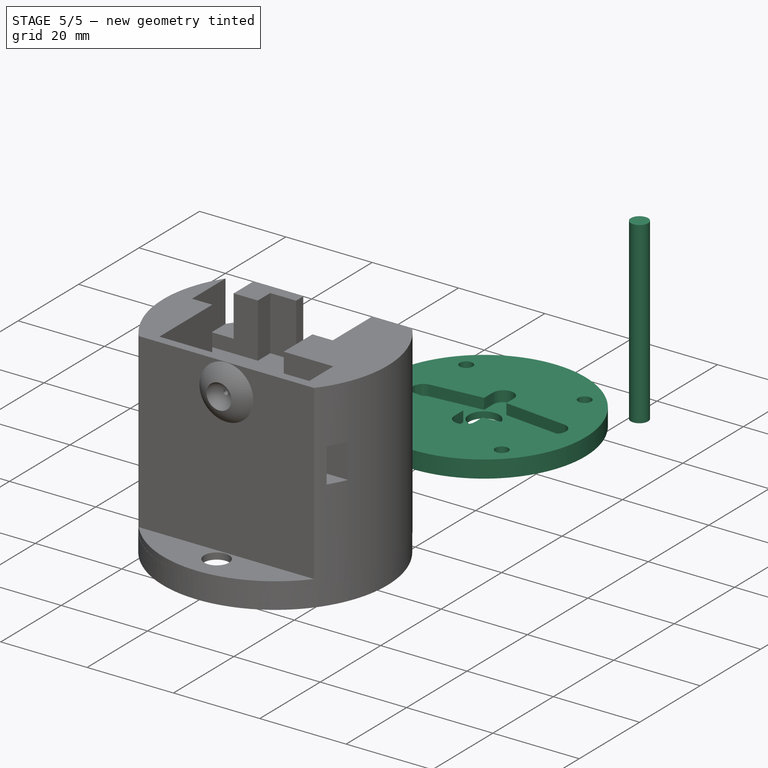
[diagram: stage 5 of 5 — iso view after this stage's code; geometry added in this stage tinted green]
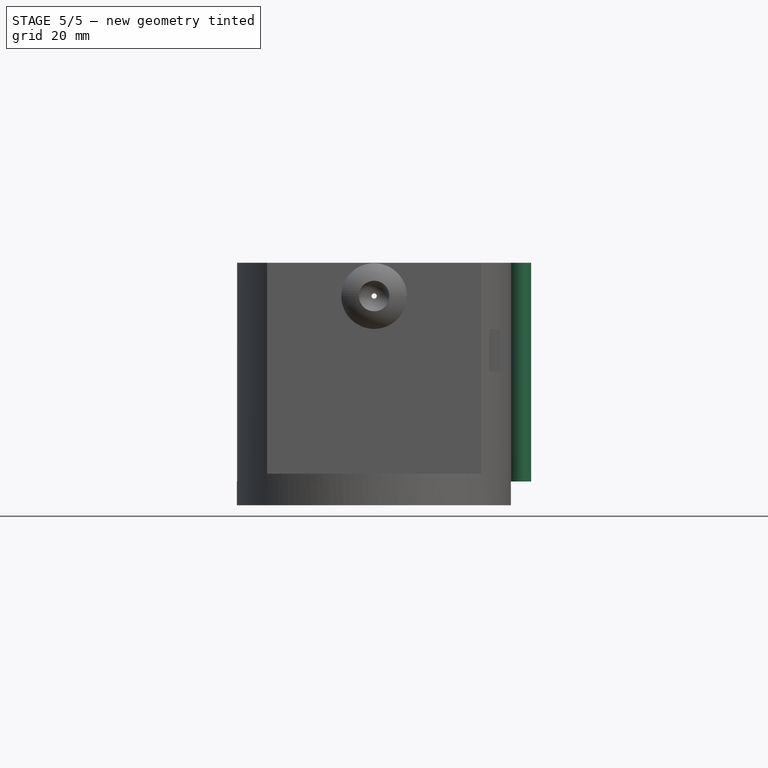
[diagram: stage 5 of 5 — front view after this stage's code; geometry added in this stage tinted green]
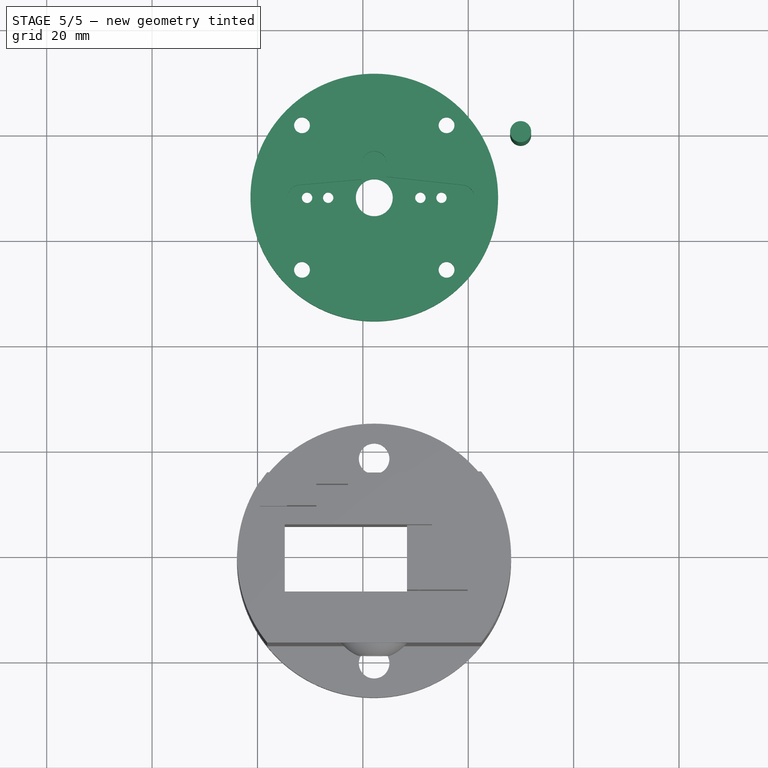
[diagram: stage 5 of 5 — top view after this stage's code; geometry added in this stage tinted green]
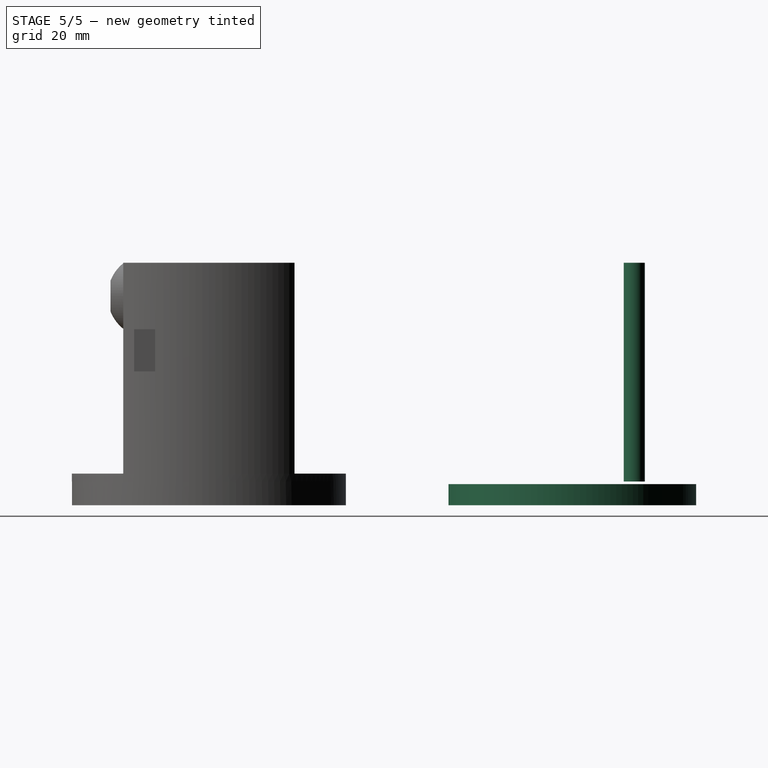
[diagram: stage 5 of 5 — right view after this stage's code; geometry added in this stage tinted green]
FEATURE [Part::Extrusion] Extrude041
  Base = -> Circle039
  Dir = (0,0,-1)
  DirMode = 2
  FaceMakerClass = Part::FaceMakerBullseye
  LengthFwd = -41.5
  LengthRev = 0
  Solid = false
  Symmetric = false
FEATURE [Part::Part2DObjectPython] Circle043  # Draft 2D object (typed FeaturePython)
  FirstAngle = 0
  LastAngle = 0
  MakeFace = true
  Placement = pos=(70,19.4988,-3) rot=(0,0,1;0rad)
  Radius = 1.5
FEATURE [Part::Part2DObjectPython] Circle044  # Draft 2D object (typed FeaturePython)
  FirstAngle = 0
  LastAngle = 0
  MakeFace = true
  Placement = pos=(70,-19.296,-3) rot=(0,0,1;0rad)
  Radius = 1.5
FEATURE [Part::Part2DObjectPython] Circle045  # Draft 2D object (typed FeaturePython)
  FirstAngle = 0
  LastAngle = 0
  MakeFace = true
  Placement = pos=(50.6026,0.101403,-3) rot=(0,0,1;0rad)
  Radius = 1.5
FEATURE [Part::Part2DObjectPython] Circle046  # Draft 2D object (typed FeaturePython)
  FirstAngle = 0
  LastAngle = 0
  MakeFace = true
  Placement = pos=(89.3974,0.101403,-3) rot=(0,0,1;0rad)
  Radius = 1.5
FEATURE [Part::Extrusion] Extrude045
  Base = -> Circle045
  Dir = (0,0,1)
  DirMode = 2
  FaceMakerClass = Part::FaceMakerBullseye
  LengthFwd = -4
  LengthRev = 0
  Solid = false
  Symmetric = false
FEATURE [Part::Extrusion] Extrude046
  Base = -> Circle043
  Dir = (0,0,1)
  DirMode = 2
  FaceMakerClass = Part::FaceMakerBullseye
  LengthFwd = -4
  LengthRev = 0
  Solid = false
  Symmetric = false
FEATURE [Part::Extrusion] Extrude047
  Base = -> Circle046
  Dir = (0,0,1)
  DirMode = 2
  FaceMakerClass = Part::FaceMakerBullseye
  LengthFwd = -4
  LengthRev = 0
  Solid = false
  Symmetric = false
FEATURE [Part::Cut] Cut009
  Base = -> Cut008
  Tool = -> Extrude047
FEATURE [Part::Cut] Cut010
  Base = -> Cut009
  Tool = -> Extrude046
FEATURE [Part::Cut] Cut011
  Base = -> Cut010
  Tool = -> Extrude045
FEATURE [Part::Extrusion] Extrude050
  Base = -> Circle047
  Dir = (0,0,1)
  DirMode = 2
  FaceMakerClass = Part::FaceMakerBullseye
  LengthFwd = -1.5
  LengthRev = 0
  Solid = false
  Symmetric = false
FEATURE [Part::Extrusion] Extrude051
  Base = -> Circle048
  Dir = (0,0,1)
  DirMode = 2
  FaceMakerClass = Part::FaceMakerBullseye
  LengthFwd = -1.5
  LengthRev = 0
  Solid = false
  Symmetric = false
FEATURE [Part::Extrusion] Extrude052
  Base = -> Circle049
  Dir = (0,0,1)
  DirMode = 2
  FaceMakerClass = Part::FaceMakerBullseye
  LengthFwd = -1.5
  LengthRev = 0
  Solid = false
  Symmetric = false
FEATURE [Part::Cut] Cut012
  Base = -> Cut011
  Tool = -> Extrude049
FEATURE [Part::Cut] Cut013
  Base = -> Cut012
  Tool = -> Extrude050
FEATURE [Part::Cut] Cut014
  Base = -> Cut013
  Tool = -> Extrude051
FEATURE [Part::Cut] Cut015
  Base = -> Cut014
  Placement = pos=(20.5732,-49.4682,0) rot=(0,0,1;0.785398rad)
  Tool = -> Extrude052
FEATURE [Part::Cut] Cut018  label="Cut0 - Disk"
  Base = -> Cut015
  Placement = pos=(-27.8312,-11.6664,3.7) rot=(1,0,0;3.14159rad)
  Tool = -> Fusion016
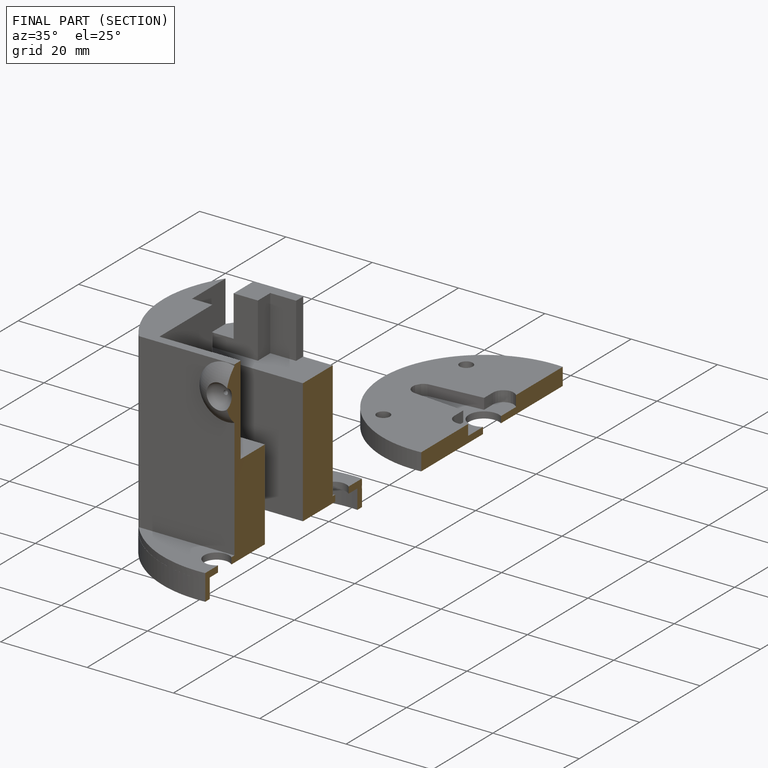
[diagram: finished part — half-section view (interior)]
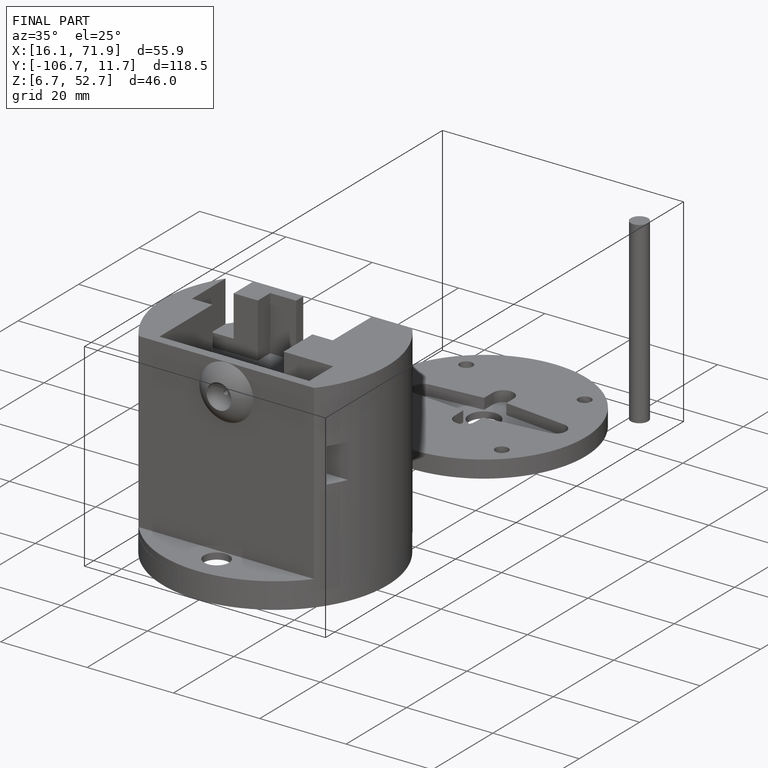
[diagram: finished part — iso view with bounding-box wireframe]
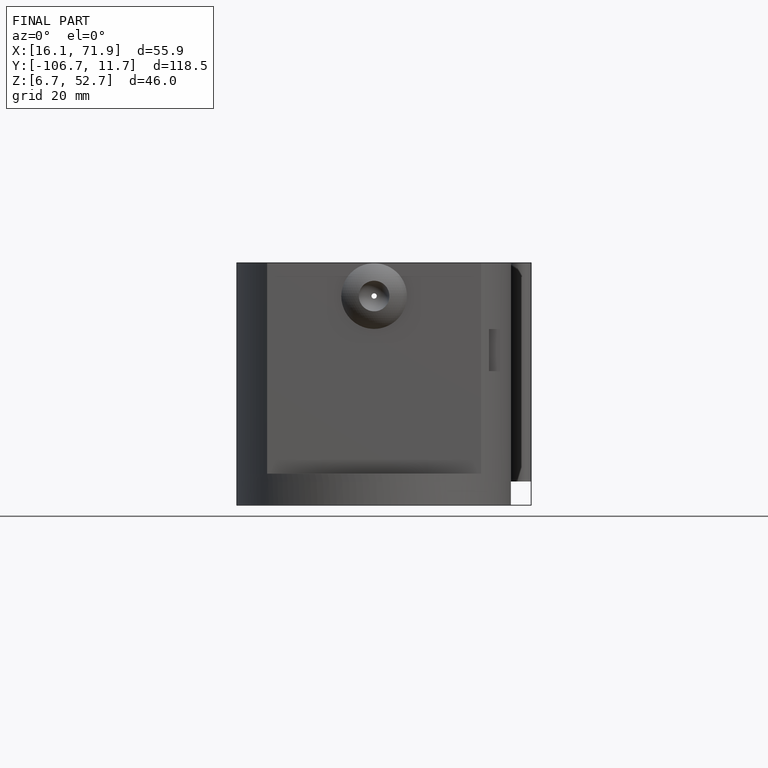
[diagram: finished part — front view with bounding-box wireframe]
